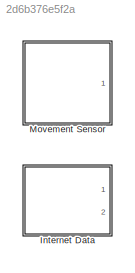
MODEL slx_2d6b376e5f2a
KIND model
CONFIG AbsTol = auto
CONFIG EnableMultiTasking = off
CONFIG FixedStep = auto
CONFIG MaxStep = auto
CONFIG MinStep = auto
CONFIG RelTol = 1e-3
CONFIG SampleTimeConstraint = Unconstrained
CONFIG Solver = VariableStepAuto
CONFIG SolverName = VariableStepAuto
CONFIG StartTime = 0.0
CONFIG StopTime = 10.0
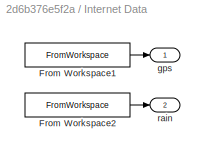
BLOCK [SubSystem] Internet Data
  Ports = [0, 2]
  RequestExecContextInheritance = off
BLOCK [FromWorkspace] Internet Data/From Workspace1
  SampleTime = 0
  VariableName = inhabitant_gps
  ZeroCross = on
BLOCK [FromWorkspace] Internet Data/From Workspace2
  SampleTime = 0
  VariableName = rain_prediction
  ZeroCross = on
BLOCK [Outport] Internet Data/gps
  IconDisplay = Port number
BLOCK [Outport] Internet Data/rain
  IconDisplay = Port number
  Port = 2
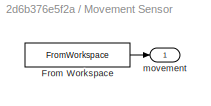
BLOCK [SubSystem] Movement Sensor
  Ports = [0, 1]
  RequestExecContextInheritance = off
BLOCK [FromWorkspace] Movement Sensor/From Workspace
  SampleTime = 0
  VariableName = inhabitant_movement
  ZeroCross = on
BLOCK [Outport] Movement Sensor/movement
  IconDisplay = Port number
LINE Internet Data/From Workspace1:1 -> Internet Data/gps:1
LINE Internet Data/From Workspace2:1 -> Internet Data/rain:1
LINE Movement Sensor/From Workspace:1 -> Movement Sensor/movement:1
